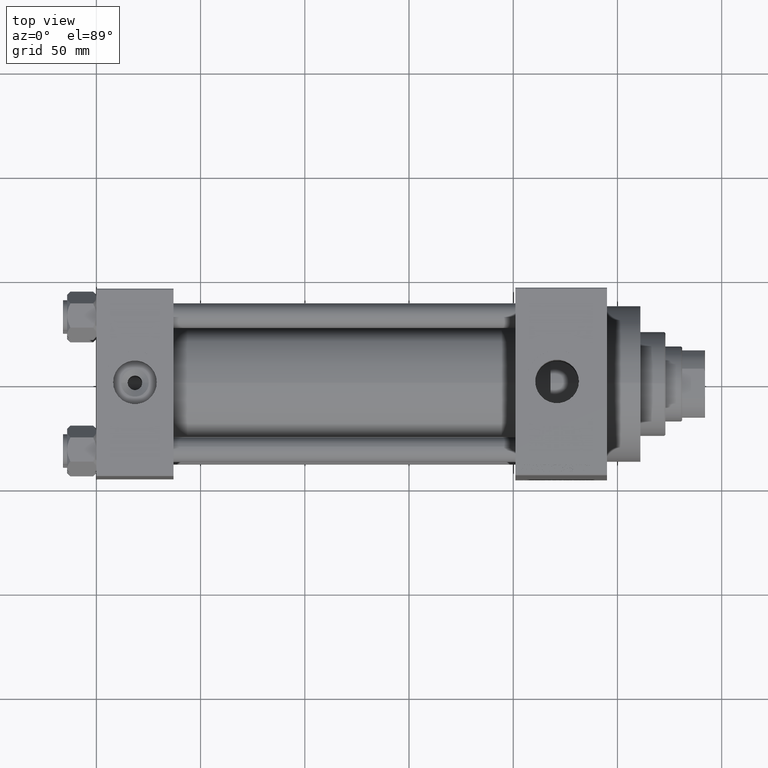
[diagram: clean part render]
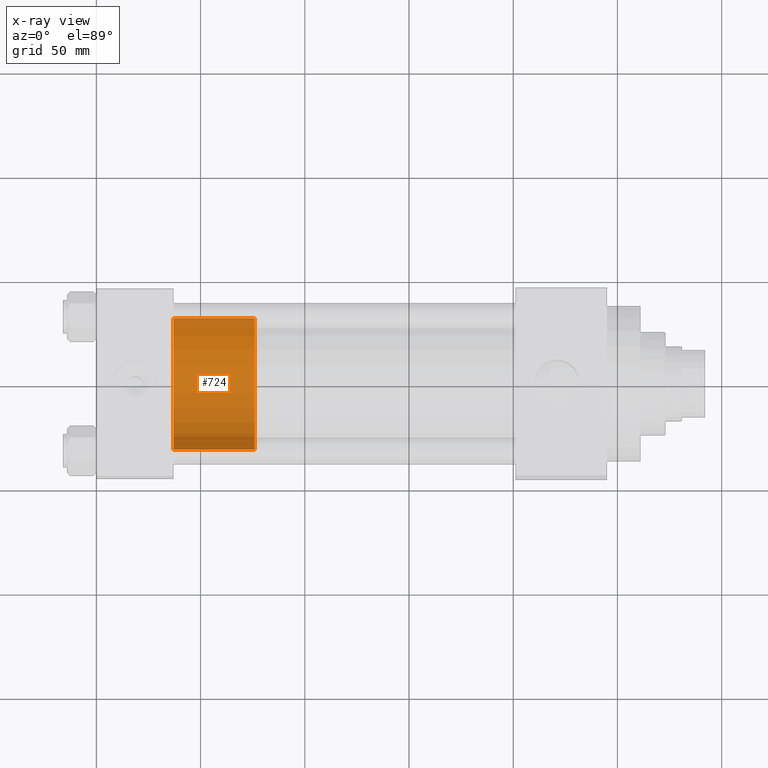
[diagram: x-ray — body ghosted, one internal face saturated and labeled with its STEP entity id]
A machine part, top view, then the same camera in x-ray: the body is ghosted and one INTERNAL B-rep face — a face not visible from any outside direction — is saturated and labeled: STEP entity #724.
In plain terms, the highlighted cylindrical surface (partial cylindrical patch) has radius 31.5 mm, axis along (-1, 0, 0).
Its self-contained STEP definition (entity closure, byte-faithful):
#724 = ADVANCED_FACE ( 'NONE', ( #19879 ), #20126, .T. ) ;
#5167 = VERTEX_POINT ( 'NONE', #36053 ) ;
#5981 = VECTOR ( 'NONE', #47236, 1000.000000000000000 ) ;
#6322 = AXIS2_PLACEMENT_3D ( 'NONE', #21089, #17963, #39317 ) ;
#11379 = CIRCLE ( 'NONE', #17499, 31.50000000000000000 ) ;
#12923 = DIRECTION ( 'NONE',  ( -0.000000000000000000, -0.000000000000000000, -1.000000000000000000 ) ) ;
#15065 = LINE ( 'NONE', #32598, #5981 ) ;
#16754 = CARTESIAN_POINT ( 'NONE',  ( 0.000000000000000000, 0.000000000000000000, 39.00000000000000000 ) ) ;
#17248 = EDGE_LOOP ( 'NONE', ( #38336, #20497, #47399, #22792 ) ) ;
#17499 = AXIS2_PLACEMENT_3D ( 'NONE', #16754, #41924, #27778 ) ;
#17871 = CARTESIAN_POINT ( 'NONE',  ( -31.50000000000000000, 0.000000000000000000, 0.000000000000000000 ) ) ;
#17963 = DIRECTION ( 'NONE',  ( 0.000000000000000000, 0.000000000000000000, 1.000000000000000000 ) ) ;
#19879 = FACE_OUTER_BOUND ( 'NONE', #17248, .T. ) ;
#20126 = CYLINDRICAL_SURFACE ( 'NONE', #38794, 31.50000000000000000 ) ;
#20497 = ORIENTED_EDGE ( 'NONE', *, *, #20869, .T. ) ;
#20869 = EDGE_CURVE ( 'NONE', #5167, #35741, #37836, .T. ) ;
#21089 = CARTESIAN_POINT ( 'NONE',  ( 0.000000000000000000, 0.000000000000000000, 0.000000000000000000 ) ) ;
#22792 = ORIENTED_EDGE ( 'NONE', *, *, #27636, .F. ) ;
#23714 = DIRECTION ( 'NONE',  ( -1.000000000000000000, 0.000000000000000000, 0.000000000000000000 ) ) ;
#27551 = CARTESIAN_POINT ( 'NONE',  ( 0.000000000000000000, 0.000000000000000000, 39.00000000000000000 ) ) ;
#27636 = EDGE_CURVE ( 'NONE', #31677, #45975, #15065, .T. ) ;
#27778 = DIRECTION ( 'NONE',  ( 1.000000000000000000, 0.000000000000000000, 0.000000000000000000 ) ) ;
#28296 = CARTESIAN_POINT ( 'NONE',  ( -31.50000000000000000, 0.000000000000000000, 39.00000000000000000 ) ) ;
#31576 = CIRCLE ( 'NONE', #6322, 31.50000000000000000 ) ;
#31677 = VERTEX_POINT ( 'NONE', #28296 ) ;
#32598 = CARTESIAN_POINT ( 'NONE',  ( -31.50000000000000000, 0.000000000000000000, 39.00000000000000000 ) ) ;
#34937 = CARTESIAN_POINT ( 'NONE',  ( 31.50000000000000000, 3.857637417314162689E-15, 39.00000000000000000 ) ) ;
#35741 = VERTEX_POINT ( 'NONE', #43537 ) ;
#36053 = CARTESIAN_POINT ( 'NONE',  ( 31.50000000000000000, 3.857637417314162689E-15, 39.00000000000000000 ) ) ;
#37836 = LINE ( 'NONE', #34937, #46453 ) ;
#38336 = ORIENTED_EDGE ( 'NONE', *, *, #45560, .F. ) ;
#38794 = AXIS2_PLACEMENT_3D ( 'NONE', #27551, #12923, #23714 ) ;
#39317 = DIRECTION ( 'NONE',  ( 1.000000000000000000, 0.000000000000000000, 0.000000000000000000 ) ) ;
#41261 = EDGE_CURVE ( 'NONE', #35741, #45975, #31576, .T. ) ;
#41924 = DIRECTION ( 'NONE',  ( 0.000000000000000000, 0.000000000000000000, 1.000000000000000000 ) ) ;
#43537 = CARTESIAN_POINT ( 'NONE',  ( 31.50000000000000000, 3.857637417314162689E-15, 0.000000000000000000 ) ) ;
#45560 = EDGE_CURVE ( 'NONE', #5167, #31677, #11379, .T. ) ;
#45742 = DIRECTION ( 'NONE',  ( -0.000000000000000000, -0.000000000000000000, -1.000000000000000000 ) ) ;
#45975 = VERTEX_POINT ( 'NONE', #17871 ) ;
#46453 = VECTOR ( 'NONE', #45742, 1000.000000000000000 ) ;
#47236 = DIRECTION ( 'NONE',  ( -0.000000000000000000, -0.000000000000000000, -1.000000000000000000 ) ) ;
#47399 = ORIENTED_EDGE ( 'NONE', *, *, #41261, .T. ) ;